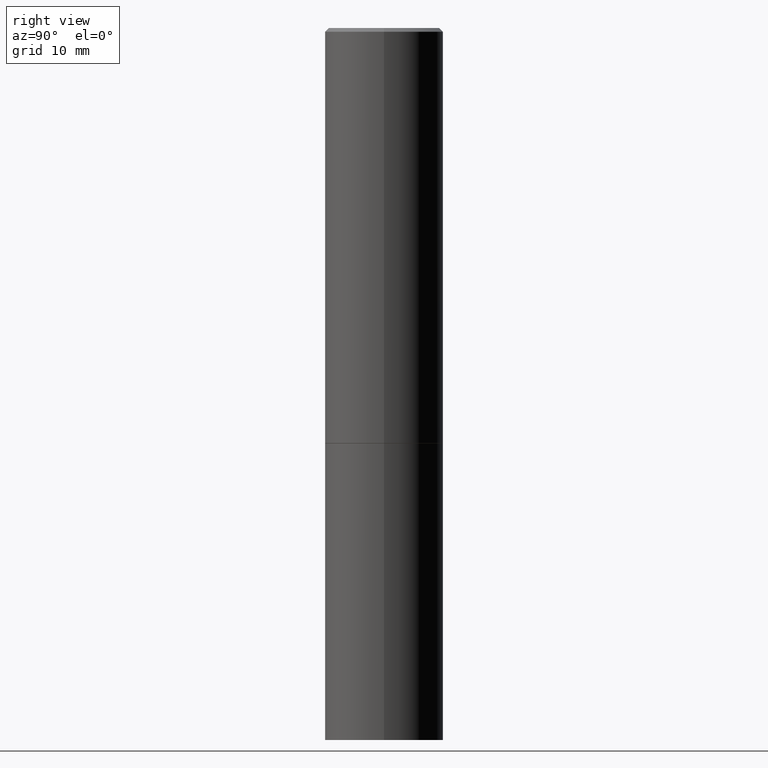
[diagram: clean part render]
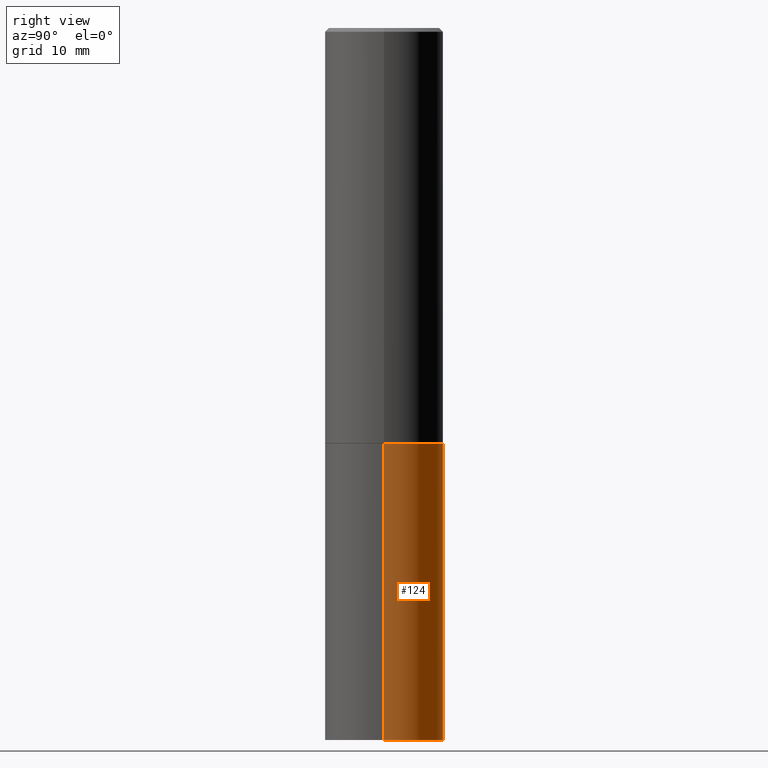
[diagram: same view with one face highlighted and labeled with its STEP entity id]
A machine part, right view. The second image highlights one B-rep face of the part: STEP entity #124.
In plain terms, the highlighted cylindrical surface (partial cylindrical patch) has radius 7.9375 mm, axis along (-0, 0, 1).
Its self-contained STEP definition (entity closure, byte-faithful):
#3 = CARTESIAN_POINT ( 'NONE',  ( 5.349463013529986305E-29, -7.637615428719381825E-15, -2.187500000000000000 ) ) ;
#7 = DIRECTION ( 'NONE',  ( -2.445468806185136597E-29, 3.491481338843145583E-15, 1.000000000000000000 ) ) ;
#8 = VERTEX_POINT ( 'NONE', #366 ) ;
#10 = CARTESIAN_POINT ( 'NONE',  ( -0.3125000000000000000, -8.144889175440275750E-15, -2.187500000000000000 ) ) ;
#13 = VECTOR ( 'NONE', #91, 39.37007874015748143 ) ;
#43 = CARTESIAN_POINT ( 'NONE',  ( 0.000000000000000000, 0.000000000000000000, 0.000000000000000000 ) ) ;
#55 = EDGE_LOOP ( 'NONE', ( #220, #306, #347, #271 ) ) ;
#83 = VERTEX_POINT ( 'NONE', #171 ) ;
#90 = DIRECTION ( 'NONE',  ( 1.000000000000000000, -6.982962677686269077E-15, 0.000000000000000000 ) ) ;
#91 = DIRECTION ( 'NONE',  ( -2.445468806185136877E-29, 3.491481338843145188E-15, 1.000000000000000000 ) ) ;
#114 = VERTEX_POINT ( 'NONE', #10 ) ;
#121 = LINE ( 'NONE', #326, #274 ) ;
#124 = ADVANCED_FACE ( 'NONE', ( #295 ), #154, .T. ) ;
#125 = DIRECTION ( 'NONE',  ( -2.445468806185136597E-29, 3.491481338843145583E-15, 1.000000000000000000 ) ) ;
#135 = AXIS2_PLACEMENT_3D ( 'NONE', #199, #125, #174 ) ;
#152 = LINE ( 'NONE', #223, #13 ) ;
#154 = CYLINDRICAL_SURFACE ( 'NONE', #303, 0.3125000000000000000 ) ;
#171 = CARTESIAN_POINT ( 'NONE',  ( 0.3125000000000000000, -1.527523085743875734E-14, -3.750000000000000000 ) ) ;
#174 = DIRECTION ( 'NONE',  ( 1.000000000000000000, -6.982962677686269077E-15, 0.000000000000000000 ) ) ;
#192 = DIRECTION ( 'NONE',  ( -2.445468806185136597E-29, 3.491481338843145583E-15, 1.000000000000000000 ) ) ;
#199 = CARTESIAN_POINT ( 'NONE',  ( 9.170508023194262238E-29, -1.309305502066179741E-14, -3.750000000000000000 ) ) ;
#204 = CIRCLE ( 'NONE', #135, 0.3125000000000000000 ) ;
#220 = ORIENTED_EDGE ( 'NONE', *, *, #265, .T. ) ;
#223 = CARTESIAN_POINT ( 'NONE',  ( 0.3125000000000000000, -2.182175836776958347E-15, 1.523805242436230075E-29 ) ) ;
#229 = DIRECTION ( 'NONE',  ( -2.445468806185136877E-29, 3.491481338843145188E-15, 1.000000000000000000 ) ) ;
#233 = CARTESIAN_POINT ( 'NONE',  ( -0.3125000000000000000, -8.144889175440275750E-15, -3.750000000000000000 ) ) ;
#243 = VERTEX_POINT ( 'NONE', #233 ) ;
#248 = CIRCLE ( 'NONE', #304, 0.3125000000000000000 ) ;
#258 = EDGE_CURVE ( 'NONE', #243, #114, #121, .T. ) ;
#262 = EDGE_CURVE ( 'NONE', #83, #8, #152, .T. ) ;
#265 = EDGE_CURVE ( 'NONE', #83, #243, #204, .T. ) ;
#271 = ORIENTED_EDGE ( 'NONE', *, *, #262, .F. ) ;
#274 = VECTOR ( 'NONE', #229, 39.37007874015748143 ) ;
#289 = DIRECTION ( 'NONE',  ( 1.000000000000000000, -6.982962677686266711E-15, 4.876176775795936353E-29 ) ) ;
#295 = FACE_OUTER_BOUND ( 'NONE', #55, .T. ) ;
#303 = AXIS2_PLACEMENT_3D ( 'NONE', #43, #7, #289 ) ;
#304 = AXIS2_PLACEMENT_3D ( 'NONE', #3, #192, #90 ) ;
#306 = ORIENTED_EDGE ( 'NONE', *, *, #258, .T. ) ;
#314 = EDGE_CURVE ( 'NONE', #8, #114, #248, .T. ) ;
#326 = CARTESIAN_POINT ( 'NONE',  ( -0.3125000000000000000, 2.220446049250313081E-15, -1.537167215704658232E-29 ) ) ;
#347 = ORIENTED_EDGE ( 'NONE', *, *, #314, .F. ) ;
#366 = CARTESIAN_POINT ( 'NONE',  ( 0.3125000000000000000, -9.819791265496340172E-15, -2.187500000000000000 ) ) ;